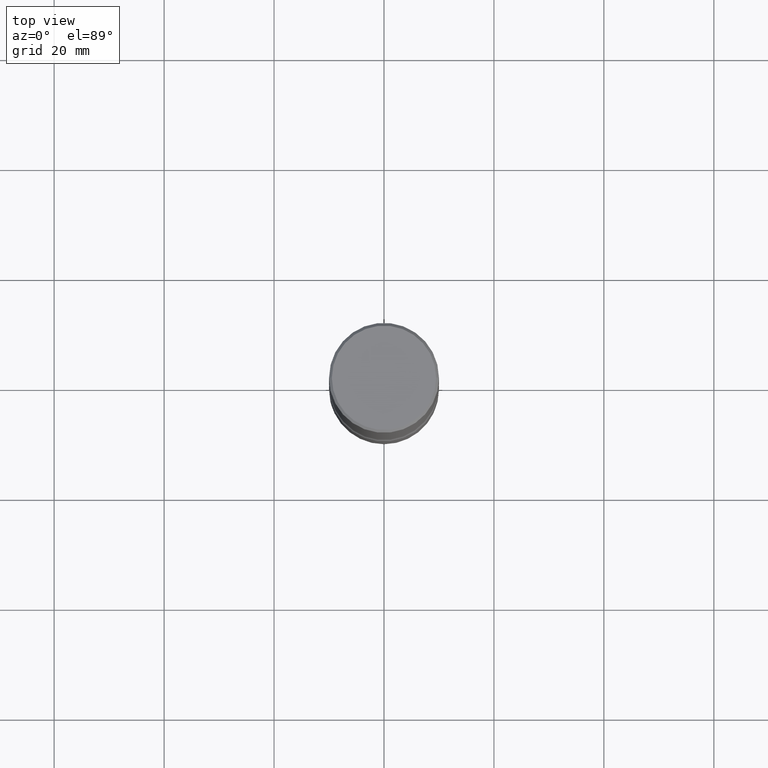
[diagram: clean part render]
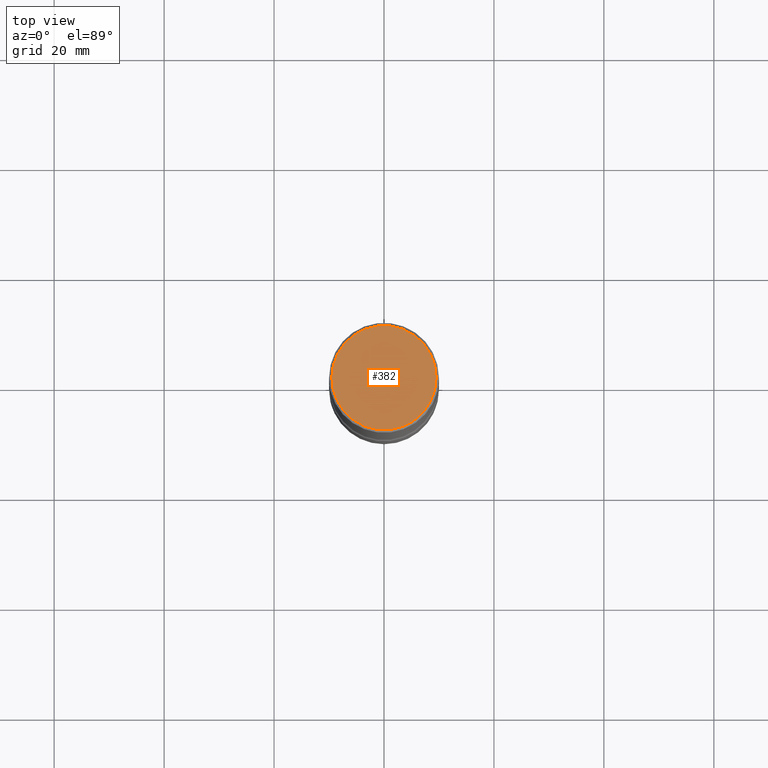
[diagram: same view with one face highlighted and labeled with its STEP entity id]
A machine part, top view. The second image highlights one B-rep face of the part: STEP entity #382.
In plain terms, the highlighted planar face has unit normal (-0, 0, 1).
Its self-contained STEP definition (entity closure, byte-faithful):
#17 = PLANE ( 'NONE',  #523 ) ;
#20 = CARTESIAN_POINT ( 'NONE',  ( 0.000000000000000000, 0.000000000000000000, 0.000000000000000000 ) ) ;
#59 = AXIS2_PLACEMENT_3D ( 'NONE', #520, #447, #220 ) ;
#93 = FACE_OUTER_BOUND ( 'NONE', #426, .T. ) ;
#96 = DIRECTION ( 'NONE',  ( -1.000000000000000000, 6.982962677686266711E-15, -4.876176775795935793E-29 ) ) ;
#153 = EDGE_CURVE ( 'NONE', #537, #407, #183, .T. ) ;
#166 = CIRCLE ( 'NONE', #359, 0.3736999999999996991 ) ;
#183 = CIRCLE ( 'NONE', #59, 0.3736999999999996991 ) ;
#220 = DIRECTION ( 'NONE',  ( -1.000000000000000000, 6.982962677686266711E-15, -4.876176775795935793E-29 ) ) ;
#307 = DIRECTION ( 'NONE',  ( 1.000000000000000000, -6.982962677686265922E-15, 4.876176775795935793E-29 ) ) ;
#308 = ORIENTED_EDGE ( 'NONE', *, *, #402, .F. ) ;
#310 = DIRECTION ( 'NONE',  ( 2.445468806185136597E-29, -3.491481338843145583E-15, -1.000000000000000000 ) ) ;
#319 = CARTESIAN_POINT ( 'NONE',  ( 0.3736999999999996991, -2.667287895133366781E-15, 1.845150283989421456E-29 ) ) ;
#323 = CARTESIAN_POINT ( 'NONE',  ( 2.609533152651355437E-15, 0.3736999999999996991, -1.300498063835582025E-15 ) ) ;
#359 = AXIS2_PLACEMENT_3D ( 'NONE', #20, #310, #96 ) ;
#382 = ADVANCED_FACE ( 'NONE', ( #93 ), #17, .T. ) ;
#402 = EDGE_CURVE ( 'NONE', #407, #537, #166, .T. ) ;
#407 = VERTEX_POINT ( 'NONE', #319 ) ;
#424 = CARTESIAN_POINT ( 'NONE',  ( -0.3736999999999996991, 2.609533152651355831E-15, -1.822227261114939718E-29 ) ) ;
#426 = EDGE_LOOP ( 'NONE', ( #470, #308 ) ) ;
#447 = DIRECTION ( 'NONE',  ( 2.445468806185136597E-29, -3.491481338843145583E-15, -1.000000000000000000 ) ) ;
#470 = ORIENTED_EDGE ( 'NONE', *, *, #153, .F. ) ;
#500 = DIRECTION ( 'NONE',  ( -2.438088387897960049E-29, 3.491481338843145188E-15, 1.000000000000000000 ) ) ;
#520 = CARTESIAN_POINT ( 'NONE',  ( 0.000000000000000000, 0.000000000000000000, 0.000000000000000000 ) ) ;
#523 = AXIS2_PLACEMENT_3D ( 'NONE', #323, #500, #307 ) ;
#537 = VERTEX_POINT ( 'NONE', #424 ) ;